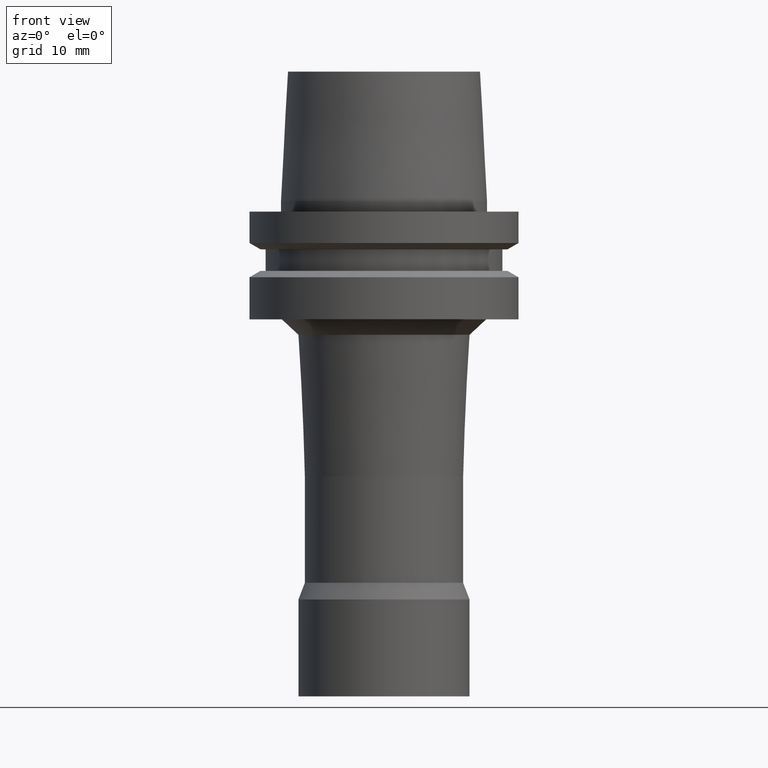
[diagram: clean part render]
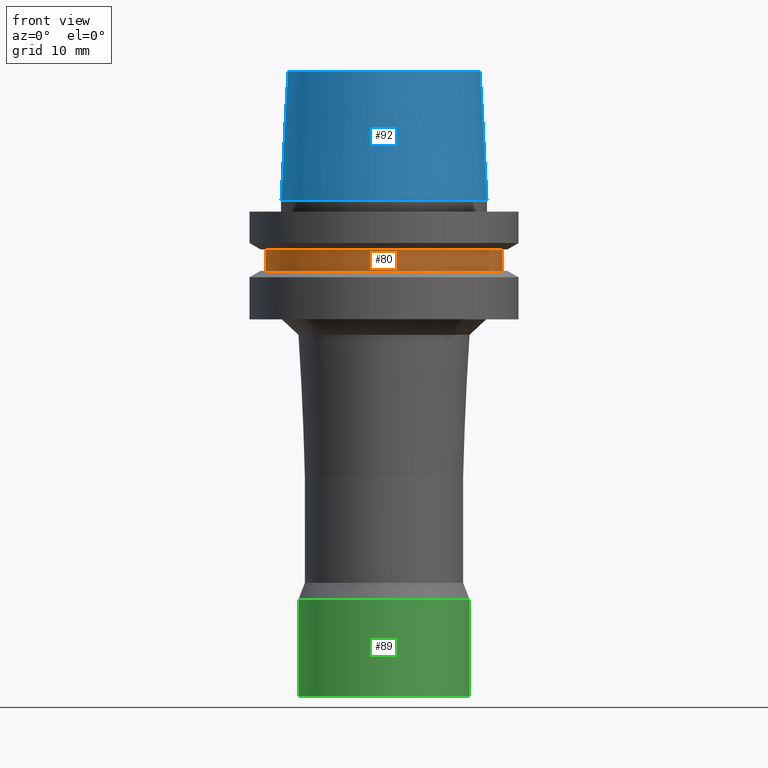
[diagram: same view with three faces highlighted in distinct colors, each labeled with its STEP entity id]
A machine part, front view with three faces highlighted in distinct colors.
Their STEP definitions:

[orange] entity #80 — the highlighted cylindrical surface (bore or boss wall) has radius 11 mm, axis along (-0, -0, 1).
#80=ADVANCED_FACE('',(#109,#110),#111,.T.);
#109=FACE_BOUND('',#161,.T.);
#110=FACE_BOUND('',#162,.T.);
#111=CYLINDRICAL_SURFACE('',#163,11.0);
#161=EDGE_LOOP('',(#223));
#162=EDGE_LOOP('',(#224));
#163=AXIS2_PLACEMENT_3D('',#225,#226,#227);
#223=ORIENTED_EDGE('',*,*,#292,.F.);
#224=ORIENTED_EDGE('',*,*,#291,.T.);
#225=CARTESIAN_POINT('',(2.75545529808154E-016,5.51091059616309E-016,-4.5));
#226=DIRECTION('',(-6.12323399573677E-017,-1.22464679914735E-016,1.0));
#227=DIRECTION('',(-1.23259516440783E-032,1.0,1.22464679914735E-016));
#291=EDGE_CURVE('',#313,#313,#314,.T.);
#292=EDGE_CURVE('',#315,#315,#316,.T.);
#313=VERTEX_POINT('',#347);
#314=CIRCLE('',#348,11.0);
#315=VERTEX_POINT('',#349);
#316=CIRCLE('',#350,11.0);
#347=CARTESIAN_POINT('',(2.14313189850787E-016,11.0,-3.5));
#348=AXIS2_PLACEMENT_3D('',#386,#387,#388);
#349=CARTESIAN_POINT('',(3.36777869765522E-016,11.0,-5.5));
#350=AXIS2_PLACEMENT_3D('',#389,#390,#391);
#386=CARTESIAN_POINT('',(2.14313189850787E-016,4.28626379701573E-016,-3.5));
#387=DIRECTION('',(6.12323399573677E-017,1.22464679914735E-016,-1.0));
#388=DIRECTION('',(-1.23259516440783E-032,1.0,1.22464679914735E-016));
#389=CARTESIAN_POINT('',(3.36777869765522E-016,6.73555739531044E-016,-5.5));
#390=DIRECTION('',(6.12323399573677E-017,1.22464679914735E-016,-1.0));
#391=DIRECTION('',(-1.23259516440783E-032,1.0,1.22464679914735E-016));

[blue] entity #92 — the highlighted conical surface has half-angle 2.862 deg.
#92=ADVANCED_FACE('',(#143,#144),#145,.T.);
#143=FACE_BOUND('',#195,.T.);
#144=FACE_BOUND('',#196,.T.);
#145=CONICAL_SURFACE('',#197,9.275,0.0499583957219411);
#195=EDGE_LOOP('',(#281));
#196=EDGE_LOOP('',(#282));
#197=AXIS2_PLACEMENT_3D('',#283,#284,#285);
#281=ORIENTED_EDGE('',*,*,#287,.F.);
#282=ORIENTED_EDGE('',*,*,#302,.T.);
#283=CARTESIAN_POINT('',(-4.28626379701574E-016,-8.57252759403147E-016,7.0));
#284=DIRECTION('',(6.12323399573676E-017,1.22464679914735E-016,-1.0));
#285=DIRECTION('',(-1.23259516440783E-032,1.0,1.22464679914735E-016));
#287=EDGE_CURVE('',#305,#305,#306,.T.);
#302=EDGE_CURVE('',#335,#335,#336,.T.);
#305=VERTEX_POINT('',#339);
#306=CIRCLE('',#340,9.575);
#335=VERTEX_POINT('',#369);
#336=CIRCLE('',#370,8.975);
#339=CARTESIAN_POINT('',(-6.12323399573678E-017,9.575,1.0));
#340=AXIS2_PLACEMENT_3D('',#374,#375,#376);
#369=CARTESIAN_POINT('',(-7.9602041944578E-016,8.975,13.0));
#370=AXIS2_PLACEMENT_3D('',#419,#420,#421);
#374=CARTESIAN_POINT('',(-6.12323399573677E-017,-1.22464679914735E-016,1.0));
#375=DIRECTION('',(6.12323399573677E-017,1.22464679914735E-016,-1.0));
#376=DIRECTION('',(-1.23259516440783E-032,1.0,1.22464679914735E-016));
#419=CARTESIAN_POINT('',(-7.9602041944578E-016,-1.59204083889156E-015,13.0));
#420=DIRECTION('',(6.12323399573676E-017,1.22464679914735E-016,-1.0));
#421=DIRECTION('',(-1.23259516440783E-032,1.0,1.22464679914735E-016));

[green] entity #89 — the highlighted cylindrical surface (bore or boss wall) has radius 8 mm, axis along (-0, -0, 1).
#89=ADVANCED_FACE('',(#136,#137),#138,.T.);
#136=FACE_BOUND('',#188,.T.);
#137=FACE_BOUND('',#189,.T.);
#138=CYLINDRICAL_SURFACE('',#190,8.0);
#188=EDGE_LOOP('',(#268));
#189=EDGE_LOOP('',(#269));
#190=AXIS2_PLACEMENT_3D('',#270,#271,#272);
#268=ORIENTED_EDGE('',*,*,#301,.F.);
#269=ORIENTED_EDGE('',*,*,#300,.T.);
#270=CARTESIAN_POINT('',(2.47990976827339E-015,4.95981953654678E-015,-40.5));
#271=DIRECTION('',(-6.12323399573677E-017,-1.22464679914735E-016,1.0));
#272=DIRECTION('',(-1.23259516440783E-032,1.0,1.22464679914735E-016));
#300=EDGE_CURVE('',#331,#331,#332,.T.);
#301=EDGE_CURVE('',#333,#333,#334,.T.);
#331=VERTEX_POINT('',#365);
#332=CIRCLE('',#366,8.0);
#333=VERTEX_POINT('',#367);
#334=CIRCLE('',#368,8.0);
#365=CARTESIAN_POINT('',(2.20436423846524E-015,8.0,-36.0));
#366=AXIS2_PLACEMENT_3D('',#413,#414,#415);
#367=CARTESIAN_POINT('',(2.75545529808154E-015,8.00000000000001,-45.0));
#368=AXIS2_PLACEMENT_3D('',#416,#417,#418);
#413=CARTESIAN_POINT('',(2.20436423846524E-015,4.40872847693047E-015,-36.0));
#414=DIRECTION('',(6.12323399573677E-017,1.22464679914735E-016,-1.0));
#415=DIRECTION('',(-1.23259516440783E-032,1.0,1.22464679914735E-016));
#416=CARTESIAN_POINT('',(2.75545529808154E-015,5.51091059616309E-015,-45.0));
#417=DIRECTION('',(6.12323399573677E-017,1.22464679914735E-016,-1.0));
#418=DIRECTION('',(-1.23259516440783E-032,1.0,1.22464679914735E-016));